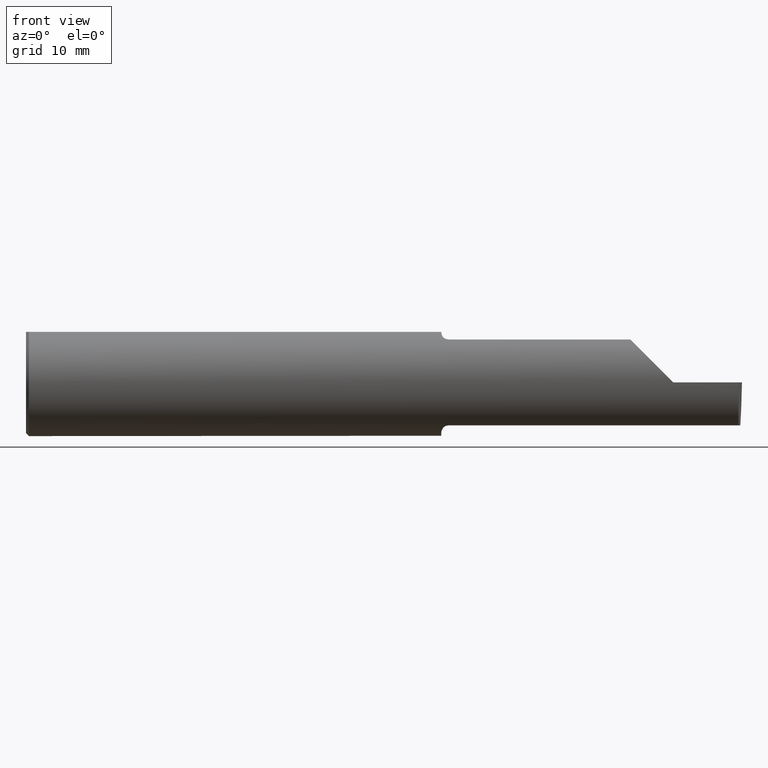
[diagram: clean part render]
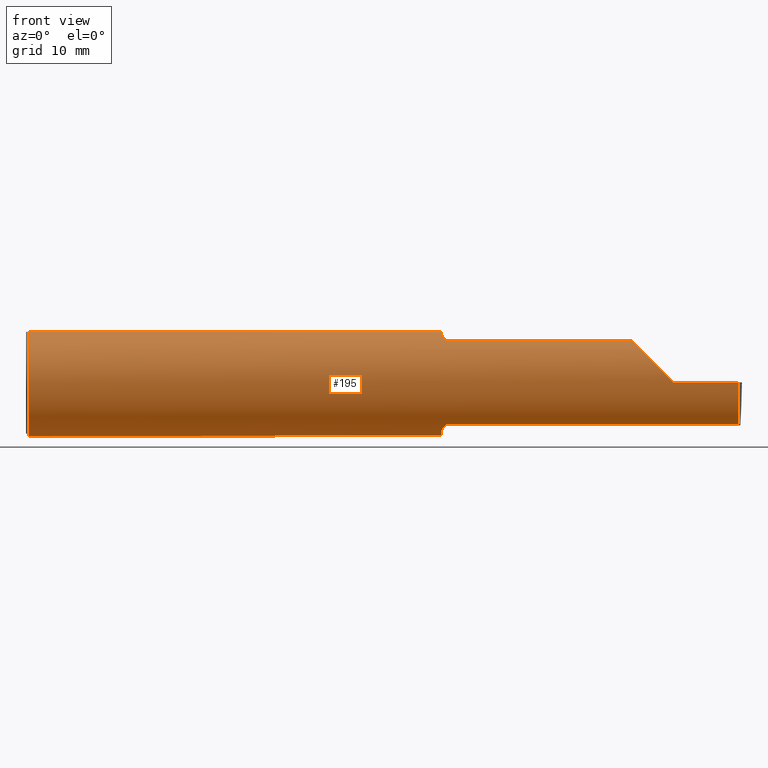
[diagram: same view with one face highlighted and labeled with its STEP entity id]
A machine part, front view. The second image highlights one B-rep face of the part: STEP entity #195.
In plain terms, the highlighted cylindrical surface (partial cylindrical patch) has radius 4.7587 mm, axis along (-1, -0, -0).
Its self-contained STEP definition (entity closure, byte-faithful):
#12 = CIRCLE ( 'NONE', #239, 0.1873499999999999888 ) ;
#16 = CARTESIAN_POINT ( 'NONE',  ( 1.450358271039144054, -0.07873626113568082951, -0.1700887912276896341 ) ) ;
#21 = EDGE_CURVE ( 'NONE', #432, #138, #550, .T. ) ;
#22 = CYLINDRICAL_SURFACE ( 'NONE', #169, 0.1873499999999999888 ) ;
#29 = FACE_OUTER_BOUND ( 'NONE', #256, .T. ) ;
#39 = CARTESIAN_POINT ( 'NONE',  ( 1.469481469043492083, -0.1163560528186165510, 0.1468472430636323656 ) ) ;
#40 = VERTEX_POINT ( 'NONE', #167 ) ;
#41 = DIRECTION ( 'NONE',  ( 1.000000000000000000, 0.000000000000000000, 0.000000000000000000 ) ) ;
#43 = ORIENTED_EDGE ( 'NONE', *, *, #539, .T. ) ;
#44 = CARTESIAN_POINT ( 'NONE',  ( 1.472161949849308371, -0.1172600179964060768, 0.1461167706989261184 ) ) ;
#46 = AXIS2_PLACEMENT_3D ( 'NONE', #601, #597, #607 ) ;
#56 = CARTESIAN_POINT ( 'NONE',  ( 1.474999999999999867, -0.1172600179964005812, -0.1461167706989303650 ) ) ;
#73 = DIRECTION ( 'NONE',  ( 0.000000000000000000, 1.000000000000000000, 0.000000000000000000 ) ) ;
#79 = VERTEX_POINT ( 'NONE', #218 ) ;
#81 = EDGE_CURVE ( 'NONE', #79, #233, #444, .T. ) ;
#82 = CARTESIAN_POINT ( 'NONE',  ( 2.488131149766799943, -0.1873499999999999888, 0.000000000000000000 ) ) ;
#86 = DIRECTION ( 'NONE',  ( -1.000000000000000000, -5.190412334829047496E-17, -0.000000000000000000 ) ) ;
#87 = ORIENTED_EDGE ( 'NONE', *, *, #21, .F. ) ;
#89 = DIRECTION ( 'NONE',  ( -1.000000000000000000, -0.000000000000000000, -0.000000000000000000 ) ) ;
#90 = VECTOR ( 'NONE', #208, 39.37007874015748143 ) ;
#93 = EDGE_CURVE ( 'NONE', #40, #289, #173, .T. ) ;
#95 = CARTESIAN_POINT ( 'NONE',  ( 2.113883229301068312, -0.1172600179964011224, 0.1461167706989300596 ) ) ;
#97 = CARTESIAN_POINT ( 'NONE',  ( 1.452945243422983035, -0.09312071749437417223, 0.1626553472577906556 ) ) ;
#100 = CARTESIAN_POINT ( 'NONE',  ( 0.000000000000000000, -0.06325108694718235836, 0.1763499999999999235 ) ) ;
#107 = CARTESIAN_POINT ( 'NONE',  ( 2.202189699843947857, -0.1873500000000000165, 0.05781030015605082700 ) ) ;
#111 = CARTESIAN_POINT ( 'NONE',  ( 1.465028532764138580, -0.1137241120808235861, -0.1488947809299403513 ) ) ;
#124 = ORIENTED_EDGE ( 'NONE', *, *, #143, .F. ) ;
#131 = CARTESIAN_POINT ( 'NONE',  ( 0.01000000000000013205, 0.000000000000000000, 0.000000000000000000 ) ) ;
#132 = AXIS2_PLACEMENT_3D ( 'NONE', #131, #192, #528 ) ;
#138 = VERTEX_POINT ( 'NONE', #495 ) ;
#141 = CARTESIAN_POINT ( 'NONE',  ( 1.456287624083520083, -0.1021858045380144436, 0.1571187174372875028 ) ) ;
#143 = EDGE_CURVE ( 'NONE', #320, #194, #516, .T. ) ;
#153 = CARTESIAN_POINT ( 'NONE',  ( 3.749399456654646757E-32, -0.1873499999999999610, 3.061616997868383634E-16 ) ) ;
#156 = EDGE_CURVE ( 'NONE', #283, #289, #576, .T. ) ;
#165 = CARTESIAN_POINT ( 'NONE',  ( 1.472174967710399462, -0.1172600179964005812, -0.1461167706989303927 ) ) ;
#167 = CARTESIAN_POINT ( 'NONE',  ( 2.260000000000000231, -0.1873499999999999888, 2.939152317953647352E-17 ) ) ;
#169 = AXIS2_PLACEMENT_3D ( 'NONE', #676, #672, #236 ) ;
#173 =( BOUNDED_CURVE ( )  B_SPLINE_CURVE ( 3, ( #226, #107, #545, #337 ),
 .UNSPECIFIED., .F., .F. ) 
 B_SPLINE_CURVE_WITH_KNOTS ( ( 4, 4 ),
 ( 4.712388980384688786, 5.606916381293133966 ),
 .UNSPECIFIED. ) 
 CURVE ( )  GEOMETRIC_REPRESENTATION_ITEM ( )  RATIONAL_B_SPLINE_CURVE ( ( 1.000000000000000000, 0.9344226172588806500, 0.9344226172588806500, 1.000000000000000000 ) ) 
 REPRESENTATION_ITEM ( '' )  );
#175 = CARTESIAN_POINT ( 'NONE',  ( 1.450000000000000178, -0.06851976604679066440, -0.1743704796142198643 ) ) ;
#178 = ORIENTED_EDGE ( 'NONE', *, *, #284, .F. ) ;
#182 = CARTESIAN_POINT ( 'NONE',  ( 2.488131149766799943, -0.1873499999999999888, 0.000000000000000000 ) ) ;
#190 = CARTESIAN_POINT ( 'NONE',  ( 1.452960551809340473, -0.09317341542745746774, -0.1626248379125196930 ) ) ;
#192 = DIRECTION ( 'NONE',  ( 1.000000000000000000, 0.000000000000000000, 0.000000000000000000 ) ) ;
#193 = CARTESIAN_POINT ( 'NONE',  ( 1.474999999999999867, -0.1172600179964005812, 0.1461167706989303927 ) ) ;
#194 = VERTEX_POINT ( 'NONE', #175 ) ;
#195 = ADVANCED_FACE ( 'NONE', ( #29 ), #22, .T. ) ;
#196 =( BOUNDED_CURVE ( )  B_SPLINE_CURVE ( 3, ( #449, #521, #396, #182 ),
 .UNSPECIFIED., .F., .T. ) 
 B_SPLINE_CURVE_WITH_KNOTS ( ( 4, 4 ),
 ( 5.852427379562187504, 6.746954780470635349 ),
 .UNSPECIFIED. ) 
 CURVE ( )  GEOMETRIC_REPRESENTATION_ITEM ( )  RATIONAL_B_SPLINE_CURVE ( ( 1.000000000000000000, 0.9344226172588802060, 0.9344226172588802060, 1.000000000000000000 ) ) 
 REPRESENTATION_ITEM ( '' )  );
#204 = CARTESIAN_POINT ( 'NONE',  ( 1.450000000000000178, -0.06851976604679066440, 0.1743704796142198643 ) ) ;
#208 = DIRECTION ( 'NONE',  ( 1.000000000000000000, 0.000000000000000000, 0.000000000000000000 ) ) ;
#217 = VECTOR ( 'NONE', #86, 39.37007874015748143 ) ;
#218 = CARTESIAN_POINT ( 'NONE',  ( 1.450000000000000178, 0.06325108694718235836, 0.1763499999999999235 ) ) ;
#223 = EDGE_CURVE ( 'NONE', #194, #79, #12, .T. ) ;
#226 = CARTESIAN_POINT ( 'NONE',  ( 2.260000000000000231, -0.1873499999999999888, 2.939152317953647352E-17 ) ) ;
#227 = VERTEX_POINT ( 'NONE', #82 ) ;
#229 = CIRCLE ( 'NONE', #594, 0.1873499999999999888 ) ;
#233 = VERTEX_POINT ( 'NONE', #452 ) ;
#236 = DIRECTION ( 'NONE',  ( 0.000000000000000000, 0.000000000000000000, 1.000000000000000000 ) ) ;
#239 = AXIS2_PLACEMENT_3D ( 'NONE', #459, #683, #73 ) ;
#241 = EDGE_CURVE ( 'NONE', #701, #227, #196, .T. ) ;
#249 = CARTESIAN_POINT ( 'NONE',  ( 1.450353553376444893, -0.07868116735658675642, 0.1701139256562800572 ) ) ;
#256 = EDGE_LOOP ( 'NONE', ( #178, #673, #525, #639, #708, #359, #87, #304, #461, #43, #583, #562, #124 ) ) ;
#258 = DIRECTION ( 'NONE',  ( 0.000000000000000000, 0.000000000000000000, -1.000000000000000000 ) ) ;
#261 = LINE ( 'NONE', #153, #614 ) ;
#266 = CIRCLE ( 'NONE', #132, 0.1873499999999999888 ) ;
#279 = CARTESIAN_POINT ( 'NONE',  ( 1.463203859946834440, -0.1120371980050638844, -0.1501764597936559309 ) ) ;
#283 = VERTEX_POINT ( 'NONE', #376 ) ;
#284 = EDGE_CURVE ( 'NONE', #701, #320, #365, .T. ) ;
#287 = CARTESIAN_POINT ( 'NONE',  ( 1.450000000000000178, -0.06325108694718287183, 0.1763499999999999235 ) ) ;
#289 = VERTEX_POINT ( 'NONE', #95 ) ;
#304 = ORIENTED_EDGE ( 'NONE', *, *, #319, .F. ) ;
#305 = EDGE_CURVE ( 'NONE', #227, #40, #261, .T. ) ;
#306 = CARTESIAN_POINT ( 'NONE',  ( 2.488026713523223243, -0.1172600179964006090, -0.1461167706989303650 ) ) ;
#318 = CARTESIAN_POINT ( 'NONE',  ( 1.465004157323697376, -0.1137044537483316020, 0.1489098419202428691 ) ) ;
#319 = EDGE_CURVE ( 'NONE', #565, #432, #473, .T. ) ;
#320 = VERTEX_POINT ( 'NONE', #586 ) ;
#337 = CARTESIAN_POINT ( 'NONE',  ( 2.113883229301068312, -0.1172600179964011224, 0.1461167706989300596 ) ) ;
#345 = CARTESIAN_POINT ( 'NONE',  ( 1.450000000000000178, -0.06851976604679066440, -0.1743704796142198643 ) ) ;
#346 = EDGE_CURVE ( 'NONE', #138, #283, #693, .T. ) ;
#349 = EDGE_CURVE ( 'NONE', #565, #500, #229, .T. ) ;
#350 = DIRECTION ( 'NONE',  ( 1.000000000000000000, 5.190412334829047496E-17, 0.000000000000000000 ) ) ;
#358 = CARTESIAN_POINT ( 'NONE',  ( 1.451843912362378308, -0.08846956905169092722, -0.1652353808078972086 ) ) ;
#359 = ORIENTED_EDGE ( 'NONE', *, *, #346, .F. ) ;
#361 = CARTESIAN_POINT ( 'NONE',  ( 1.458475602106621638, -0.1064978748893405519, 0.1542035505680384444 ) ) ;
#365 = LINE ( 'NONE', #648, #217 ) ;
#376 = CARTESIAN_POINT ( 'NONE',  ( 1.474999999999999867, -0.1172600179964005812, 0.1461167706989303927 ) ) ;
#384 = CARTESIAN_POINT ( 'NONE',  ( 0.000000000000000000, 0.06325108694718235836, 0.1763499999999999235 ) ) ;
#386 = CARTESIAN_POINT ( 'NONE',  ( 1.469511795768554840, -0.1163687266324234804, -0.1468371510166788796 ) ) ;
#396 = CARTESIAN_POINT ( 'NONE',  ( 2.487121452143546296, -0.1873500000000000165, -0.05781030015605123640 ) ) ;
#407 = CARTESIAN_POINT ( 'NONE',  ( 1.456304331342287872, -0.1022198306720690925, -0.1570962426853818594 ) ) ;
#414 = CARTESIAN_POINT ( 'NONE',  ( 0.01000000000000013205, 0.000000000000000000, 0.000000000000000000 ) ) ;
#432 = VERTEX_POINT ( 'NONE', #287 ) ;
#438 = CARTESIAN_POINT ( 'NONE',  ( 0.01000000000000013205, 0.000000000000000000, -0.1873499999999999888 ) ) ;
#444 = LINE ( 'NONE', #384, #605 ) ;
#449 = CARTESIAN_POINT ( 'NONE',  ( 2.488026713523223243, -0.1172600179964006090, -0.1461167706989303650 ) ) ;
#452 = CARTESIAN_POINT ( 'NONE',  ( 0.01000000000000013205, 0.06325108694718235836, 0.1763499999999999235 ) ) ;
#459 = CARTESIAN_POINT ( 'NONE',  ( 1.450000000000000178, 0.000000000000000000, 0.000000000000000000 ) ) ;
#461 = ORIENTED_EDGE ( 'NONE', *, *, #349, .T. ) ;
#473 = LINE ( 'NONE', #100, #90 ) ;
#495 = CARTESIAN_POINT ( 'NONE',  ( 1.450000000000000178, -0.06851976604679066440, 0.1743704796142198643 ) ) ;
#500 = VERTEX_POINT ( 'NONE', #438 ) ;
#509 = CARTESIAN_POINT ( 'NONE',  ( 1.955930449999999876, -0.1172600179964006506, 0.1461167706989303650 ) ) ;
#516 = B_SPLINE_CURVE_WITH_KNOTS ( 'NONE', 3,
 ( #56, #165, #386, #111, #279, #664, #407, #190, #358, #16, #572, #345 ),
 .UNSPECIFIED., .F., .F.,
 ( 4, 2, 2, 2, 2, 4 ),
 ( 1.967976973658592312E-07, 0.0002120314145722273266, 0.0004238660314470887587, 0.0008475352651967989377, 0.001271204498946509279, 0.001694873732696219621 ),
 .UNSPECIFIED. ) ;
#521 = CARTESIAN_POINT ( 'NONE',  ( 2.487084196965268390, -0.1623470442677540926, -0.1099340280425339100 ) ) ;
#524 = CARTESIAN_POINT ( 'NONE',  ( 1.451829077486400443, -0.08839624499054646312, 0.1652742498708037744 ) ) ;
#525 = ORIENTED_EDGE ( 'NONE', *, *, #305, .T. ) ;
#528 = DIRECTION ( 'NONE',  ( 0.000000000000000000, 0.000000000000000000, -1.000000000000000000 ) ) ;
#531 = CARTESIAN_POINT ( 'NONE',  ( 1.463163223656403167, -0.1119926267047277324, 0.1502091925606063028 ) ) ;
#539 = EDGE_CURVE ( 'NONE', #500, #233, #266, .T. ) ;
#545 = CARTESIAN_POINT ( 'NONE',  ( 2.150065971957465294, -0.1623470442677543146, 0.1099340280425333688 ) ) ;
#550 = CIRCLE ( 'NONE', #46, 0.1873499999999999888 ) ;
#562 = ORIENTED_EDGE ( 'NONE', *, *, #223, .F. ) ;
#565 = VERTEX_POINT ( 'NONE', #682 ) ;
#572 = CARTESIAN_POINT ( 'NONE',  ( 1.449999999999999512, -0.07368234487347195827, -0.1723418180300747282 ) ) ;
#576 = LINE ( 'NONE', #509, #675 ) ;
#583 = ORIENTED_EDGE ( 'NONE', *, *, #81, .F. ) ;
#586 = CARTESIAN_POINT ( 'NONE',  ( 1.474999999999999867, -0.1172600179964005812, -0.1461167706989303650 ) ) ;
#594 = AXIS2_PLACEMENT_3D ( 'NONE', #414, #41, #258 ) ;
#597 = DIRECTION ( 'NONE',  ( 1.000000000000000000, 5.190412334829046880E-17, 0.000000000000000000 ) ) ;
#601 = CARTESIAN_POINT ( 'NONE',  ( 1.450000000000000178, 0.000000000000000000, 0.000000000000000000 ) ) ;
#605 = VECTOR ( 'NONE', #667, 39.37007874015748143 ) ;
#607 = DIRECTION ( 'NONE',  ( 0.000000000000000000, 1.000000000000000000, 0.000000000000000000 ) ) ;
#614 = VECTOR ( 'NONE', #89, 39.37007874015748143 ) ;
#639 = ORIENTED_EDGE ( 'NONE', *, *, #93, .T. ) ;
#648 = CARTESIAN_POINT ( 'NONE',  ( 1.955930449999999876, -0.1172600179964006506, -0.1461167706989303650 ) ) ;
#664 = CARTESIAN_POINT ( 'NONE',  ( 1.458439486659307338, -0.1064616213911158682, -0.1542305641651500470 ) ) ;
#667 = DIRECTION ( 'NONE',  ( -1.000000000000000000, -0.000000000000000000, -0.000000000000000000 ) ) ;
#672 = DIRECTION ( 'NONE',  ( -1.000000000000000000, -0.000000000000000000, -0.000000000000000000 ) ) ;
#673 = ORIENTED_EDGE ( 'NONE', *, *, #241, .T. ) ;
#675 = VECTOR ( 'NONE', #350, 39.37007874015748143 ) ;
#676 = CARTESIAN_POINT ( 'NONE',  ( 0.000000000000000000, 0.000000000000000000, 0.000000000000000000 ) ) ;
#682 = CARTESIAN_POINT ( 'NONE',  ( 0.01000000000000013205, -0.06325108694718235836, 0.1763499999999999235 ) ) ;
#683 = DIRECTION ( 'NONE',  ( 1.000000000000000000, 5.190412334829046880E-17, 0.000000000000000000 ) ) ;
#693 = B_SPLINE_CURVE_WITH_KNOTS ( 'NONE', 3,
 ( #204, #704, #249, #524, #97, #141, #361, #531, #318, #39, #44, #193 ),
 .UNSPECIFIED., .F., .F.,
 ( 4, 2, 2, 2, 2, 4 ),
 ( 4.423516731080825304E-05, 0.0004615475116586706503, 0.0008788598560065329730, 0.001296172200354395350, 0.001504828372528325834, 0.001713484544702256317 ),
 .UNSPECIFIED. ) ;
#701 = VERTEX_POINT ( 'NONE', #306 ) ;
#704 = CARTESIAN_POINT ( 'NONE',  ( 1.449999999999999734, -0.07367581953296700736, 0.1723443821957854338 ) ) ;
#708 = ORIENTED_EDGE ( 'NONE', *, *, #156, .F. ) ;